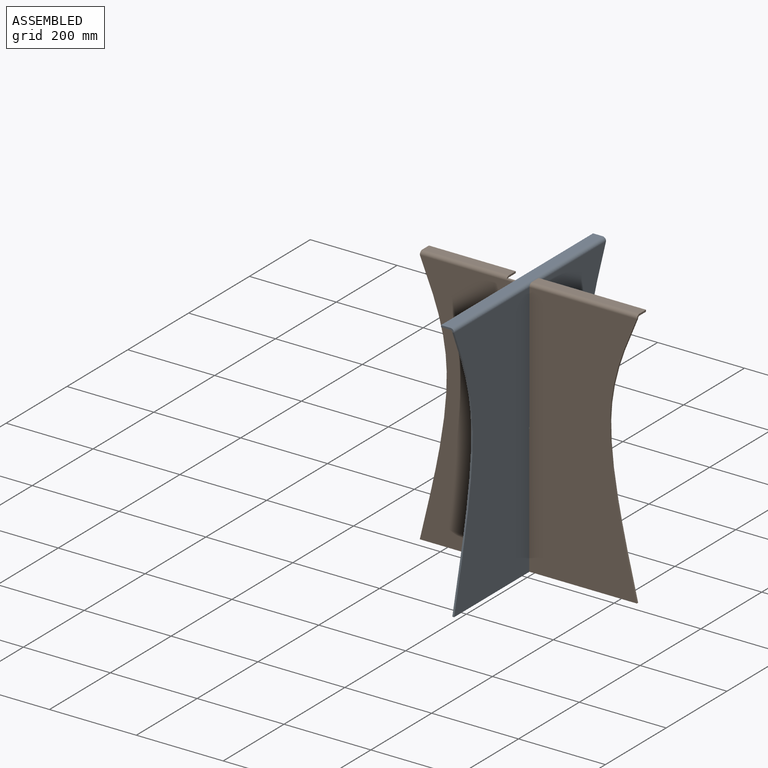
[diagram: assembled view]
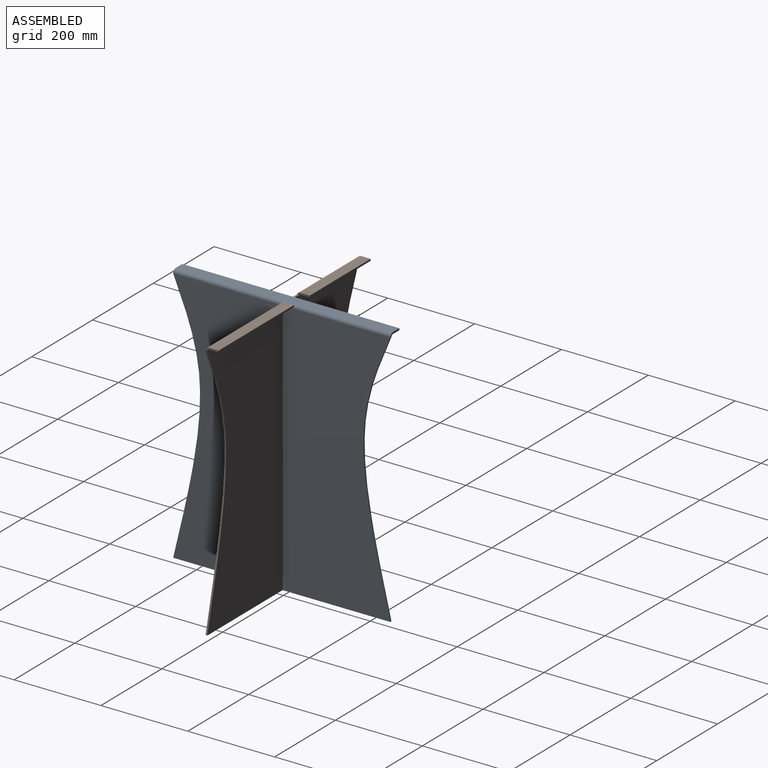
[diagram: assembled view, second angle]
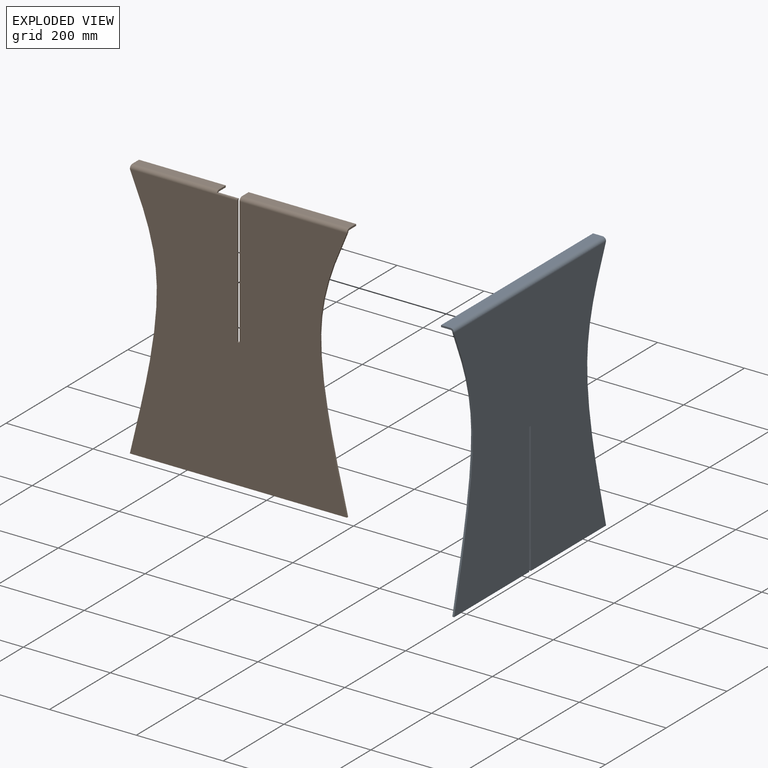
[diagram: exploded view]
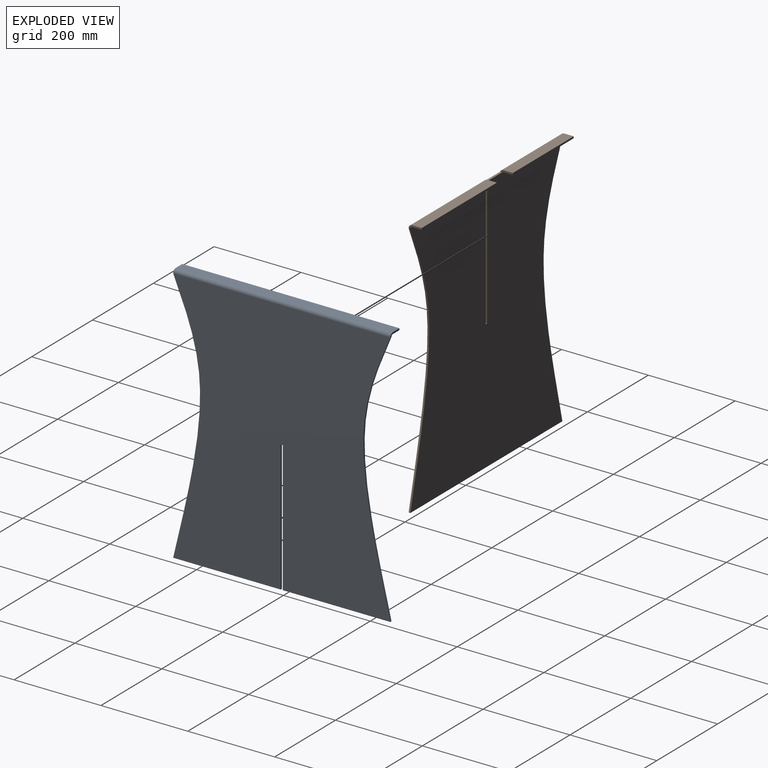
[diagram: exploded view, second angle]
ASSEMBLY  parts=2 mates=3
PART A: 16 faces, bbox 500x30x600 mm
  f0: plane 247.5x4mm, normal (0,0,-1), area 990mm2, adj f1,f2,f11,f15
  f1: plane 592x500mm, normal (0,-1,0), area 248727.6mm2, adj f0,f7,f8,f11,f12,f13,f14,f15
  f2: plane 592x500mm, normal (0,1,0), area 248727.6mm2, adj f0,f3,f8,f11,f12,f13,f14,f15
  f3: cylinder r=4mm len=500mm, axis (-1,0,0), area 3141.6mm2, adj f2,f4,f9,f10
  f4: plane 500x22mm, normal (0,0,-1), area 11000mm2, adj f3,f5,f9,f10
  f5: plane 500x4mm, normal (0,1,0), area 2000mm2, adj f4,f6,f9,f10
  f6: plane 500x22mm, normal (0,0,1), area 11000mm2, adj f5,f7,f9,f10
  f7: cylinder r=8mm len=500mm, axis (-1,0,0), area 6283.2mm2, adj f1,f6,f9,f10
  f8: plane 247.5x4mm, normal (0,0,-1), area 990mm2, adj f1,f2,f12,f13
  f9: plane 30x8mm, normal (1,0,0), area 125.7mm2, adj f3,f4,f5,f6,f7,f12
  f10: plane 30x8mm, normal (-1,0,0), area 125.7mm2, adj f3,f4,f5,f6,f7,f11
  f11: extruded ~592x62.01mm, area 2432.8mm2, adj f0,f1,f2,f10
  f12: extruded ~592x62.01mm, area 2432.8mm2, adj f1,f2,f8,f9
  f13: plane 302x4mm, normal (-1,0,0), area 1208mm2, adj f1,f2,f8,f14
  f14: plane 5x4mm, normal (0,0,-1), area 20mm2, adj f1,f2,f13,f15
  f15: plane 302x4mm, normal (1,0,0), area 1208mm2, adj f0,f1,f2,f14
PART B: 22 faces, bbox 500x30x600 mm
  f0: plane 247.5x22mm, normal (0,0,1), area 5445mm2, adj f5,f6,f13,f18
  f1: plane 592x500mm, normal (0,-1,0), area 248767.6mm2, adj f6,f11,f12,f15,f16,f17,f18,f21
  f2: plane 592x500mm, normal (0,1,0), area 248767.6mm2, adj f3,f7,f12,f15,f16,f17,f18,f21
  f3: cylinder r=4mm len=247.5mm, axis (-1,0,0), area 1555.1mm2, adj f2,f4,f13,f18
  f4: plane 247.5x22mm, normal (0,0,-1), area 5445mm2, adj f3,f5,f13,f18
  f5: plane 247.5x4mm, normal (0,1,0), area 990mm2, adj f0,f4,f13,f18
  f6: cylinder r=8mm len=247.5mm, axis (-1,0,0), area 3110.2mm2, adj f0,f1,f13,f18
  f7: cylinder r=4mm len=247.5mm, axis (-1,0,0), area 1417.6mm2, adj f2,f8,f14,f19,f20,f21
  f8: plane 199.94x22mm, normal (0,0,-1), area 4398.7mm2, adj f7,f9,f14,f19
  f9: plane 199.94x4mm, normal (0,1,0), area 799.8mm2, adj f8,f10,f14,f19
  f10: plane 199.94x22mm, normal (0,0,1), area 4398.7mm2, adj f9,f11,f14,f19
  f11: cylinder r=8mm len=247.5mm, axis (-1,0,0), area 2658.8mm2, adj f1,f10,f14,f19,f20,f21
  f12: plane 500x4mm, normal (0,0,-1), area 2000mm2, adj f1,f2,f15,f16
  f13: plane 30x8mm, normal (1,0,0), area 125.7mm2, adj f0,f3,f4,f5,f6,f16
  f14: plane 30x8mm, normal (-1,0,0), area 125.7mm2, adj f7,f8,f9,f10,f11,f15
  f15: extruded ~592x62.01mm, area 2432.8mm2, adj f1,f2,f12,f14
  f16: extruded ~592x62.01mm, area 2432.8mm2, adj f1,f2,f12,f13
  f17: plane 5x4mm, normal (0,0,1), area 20mm2, adj f1,f2,f18,f21
  f18: plane 302x30mm, normal (-1,0,0), area 1301.7mm2, adj f0,f1,f2,f3,f4,f5,f6,f17
  f19: plane 29.42x5mm, normal (1,0,0), area 113mm2, adj f7,f8,f9,f10,f11,f20
  f20: plane 47.56x4.77mm, normal (0,0,1), area 226.9mm2, adj f7,f11,f19,f21
  f21: plane 297x5.35mm, normal (1,0,0), area 1188.7mm2, adj f1,f2,f7,f11,f17,f20
PLACE A rot(axis=(0,0,1),90deg) t=(406.14,0.54,149.22)mm
PLACE B t=(403.64,-1.47,149.22)mm
MATE parallel B.f21 <-> A.f2  axis (1,0,0) through (401.14,0.54,595.81)mm
MATE parallel A.f1 <-> B.f21  axis (1,0,0) through (406.14,0.54,442.1)mm
MATE parallel B.f0 <-> A.f6  axis (0,0,1) through (529.89,17.53,749.22)mm
